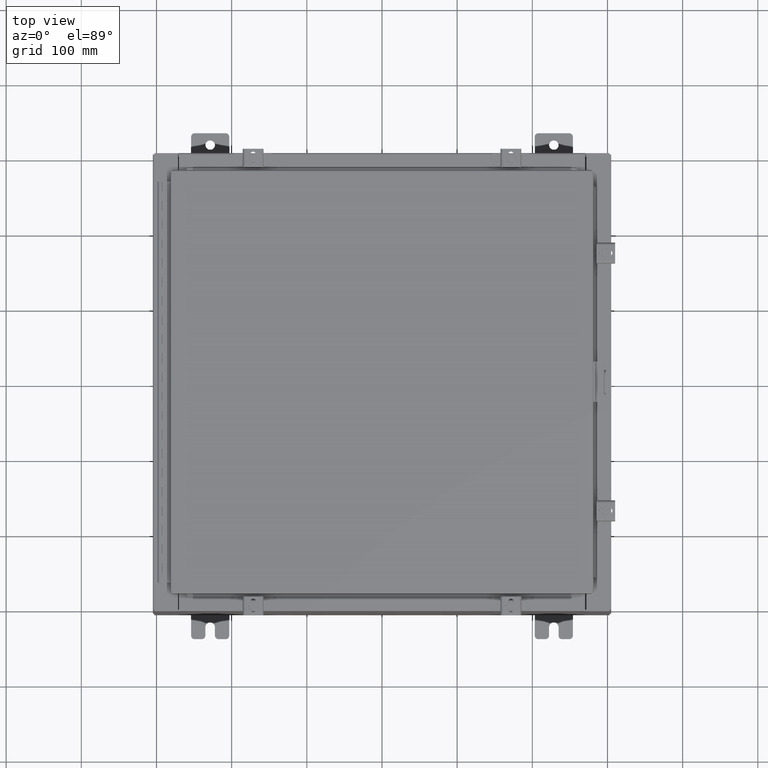
[diagram: clean part render]
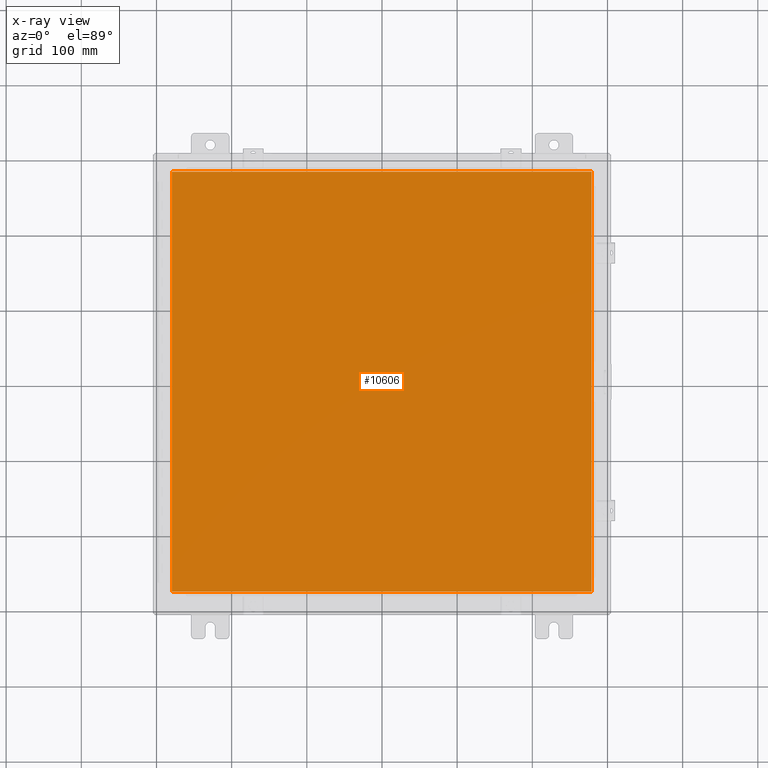
[diagram: x-ray — body ghosted, one internal face saturated and labeled with its STEP entity id]
A machine part, top view, then the same camera in x-ray: the body is ghosted and one INTERNAL B-rep face — a face not visible from any outside direction — is saturated and labeled: STEP entity #10606.
In plain terms, the highlighted planar face has unit normal (0, 0, -1).
Its self-contained STEP definition (entity closure, byte-faithful):
#69 = VERTEX_POINT ( 'NONE', #3944 ) ;
#885 = VECTOR ( 'NONE', #12239, 39.37007874015748100 ) ;
#1826 = VECTOR ( 'NONE', #3389, 39.37007874015748100 ) ;
#3389 = DIRECTION ( 'NONE',  ( 0.0000000000000000000, -1.000000000000000000, 0.0000000000000000000 ) ) ;
#3599 = EDGE_LOOP ( 'NONE', ( #19085, #29485, #29671, #15382 ) ) ;
#3944 = CARTESIAN_POINT ( 'NONE',  ( -10.99030000000000000, -11.00630000000000100, -0.07470000000000000300 ) ) ;
#4310 = EDGE_CURVE ( 'NONE', #25956, #69, #20936, .T. ) ;
#4732 = CARTESIAN_POINT ( 'NONE',  ( 0.0000000000000000000, 0.0000000000000000000, -0.07470000000000000300 ) ) ;
#6725 = CARTESIAN_POINT ( 'NONE',  ( -10.99030000000000000, -11.00630000000000100, -0.07469999999999910000 ) ) ;
#6807 = AXIS2_PLACEMENT_3D ( 'NONE', #4732, #7258, #24747 ) ;
#7258 = DIRECTION ( 'NONE',  ( 0.0000000000000000000, 0.0000000000000000000, -1.000000000000000000 ) ) ;
#8334 = LINE ( 'NONE', #19738, #885 ) ;
#8778 = VERTEX_POINT ( 'NONE', #25238 ) ;
#9123 = DIRECTION ( 'NONE',  ( 1.000000000000000000, -0.0000000000000000000, -0.0000000000000000000 ) ) ;
#9574 = CARTESIAN_POINT ( 'NONE',  ( 10.99029999999999600, 11.00629999999999600, -0.07470000000000000300 ) ) ;
#10256 = VECTOR ( 'NONE', #9123, 39.37007874015748100 ) ;
#10606 = ADVANCED_FACE ( 'NONE', ( #12360 ), #32252, .T. ) ;
#12168 = VERTEX_POINT ( 'NONE', #9574 ) ;
#12239 = DIRECTION ( 'NONE',  ( 0.0000000000000000000, 1.000000000000000000, 0.0000000000000000000 ) ) ;
#12360 = FACE_OUTER_BOUND ( 'NONE', #3599, .T. ) ;
#13950 = EDGE_CURVE ( 'NONE', #8778, #12168, #8334, .T. ) ;
#14408 = VECTOR ( 'NONE', #27924, 39.37007874015748100 ) ;
#15382 = ORIENTED_EDGE ( 'NONE', *, *, #25573, .F. ) ;
#19081 = CARTESIAN_POINT ( 'NONE',  ( -10.99030000000000500, 11.00629999999999600, -0.07470000000000133500 ) ) ;
#19085 = ORIENTED_EDGE ( 'NONE', *, *, #13950, .F. ) ;
#19486 = CARTESIAN_POINT ( 'NONE',  ( -10.99030000000000100, 11.00629999999999600, -0.07470000000000000300 ) ) ;
#19738 = CARTESIAN_POINT ( 'NONE',  ( 10.99029999999999600, -11.00630000000000100, -0.07470000000000019700 ) ) ;
#20363 = CARTESIAN_POINT ( 'NONE',  ( 10.99029999999999800, 11.00629999999999600, -0.07470000000000019700 ) ) ;
#20936 = LINE ( 'NONE', #19081, #1826 ) ;
#20996 = LINE ( 'NONE', #20363, #14408 ) ;
#24747 = DIRECTION ( 'NONE',  ( -1.000000000000000000, 0.0000000000000000000, -0.0000000000000000000 ) ) ;
#25238 = CARTESIAN_POINT ( 'NONE',  ( 10.99029999999999600, -11.00630000000000100, -0.07470000000000000300 ) ) ;
#25573 = EDGE_CURVE ( 'NONE', #12168, #25956, #20996, .T. ) ;
#25956 = VERTEX_POINT ( 'NONE', #19486 ) ;
#27924 = DIRECTION ( 'NONE',  ( -1.000000000000000000, -0.0000000000000000000, -0.0000000000000000000 ) ) ;
#29441 = LINE ( 'NONE', #6725, #10256 ) ;
#29485 = ORIENTED_EDGE ( 'NONE', *, *, #31071, .F. ) ;
#29671 = ORIENTED_EDGE ( 'NONE', *, *, #4310, .F. ) ;
#31071 = EDGE_CURVE ( 'NONE', #69, #8778, #29441, .T. ) ;
#32252 = PLANE ( 'NONE',  #6807 ) ;